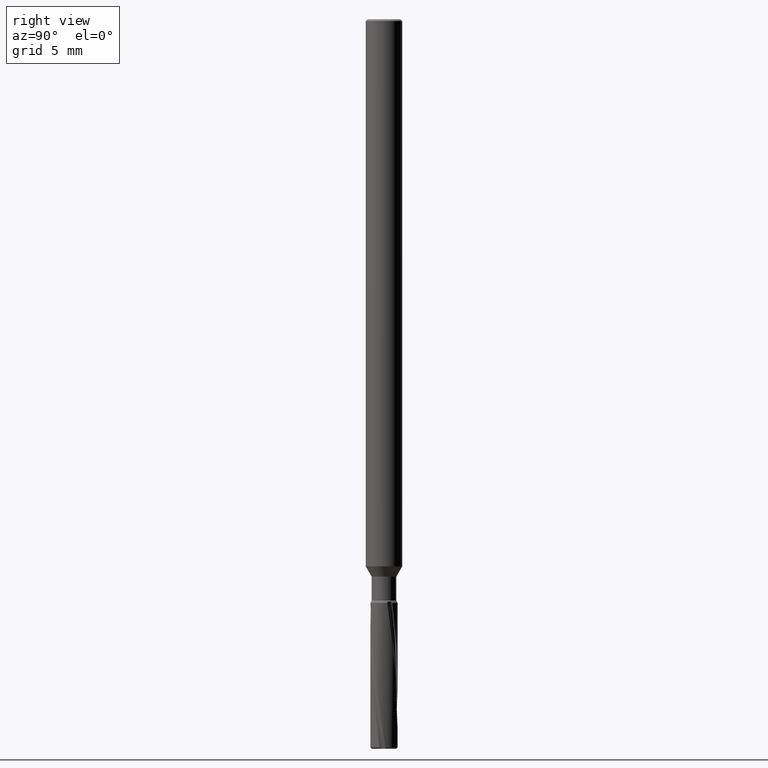
[diagram: clean part render]
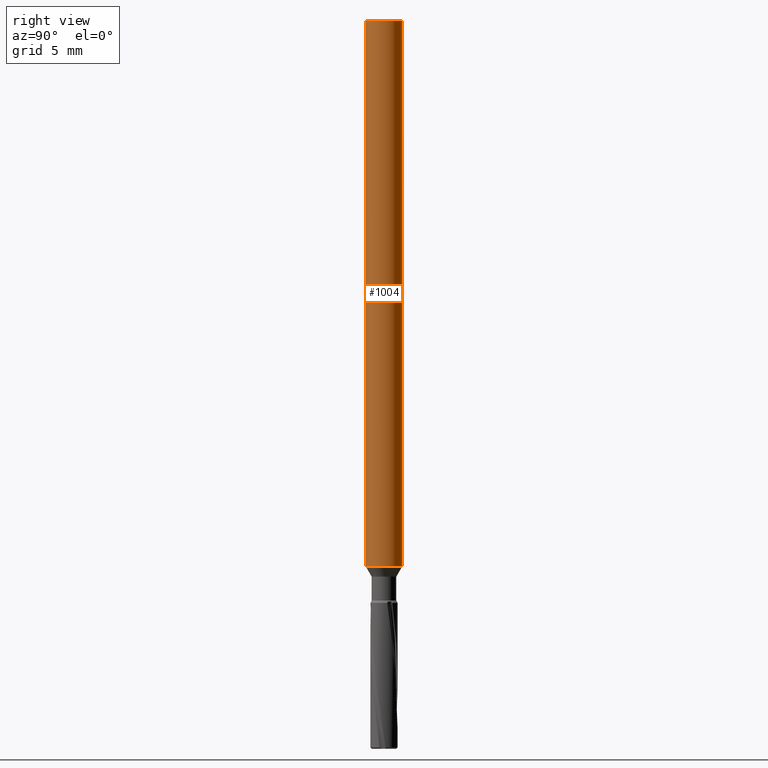
[diagram: same view with one face highlighted and labeled with its STEP entity id]
A machine part, right view. The second image highlights one B-rep face of the part: STEP entity #1004.
In plain terms, the highlighted cylindrical surface (edge-blend (fillet) strip) has radius 1 mm, axis along (-0, -0, 1).
Its self-contained STEP definition (entity closure, byte-faithful):
#538=VERTEX_POINT('',#1348);
#672=EDGE_CURVE('',#778,#948,#1491,.T.);
#712=EDGE_CURVE('',#964,#538,#1536,.T.);
#772=EDGE_CURVE('',#538,#948,#1601,.T.);
#778=VERTEX_POINT('',#1607);
#948=VERTEX_POINT('',#1792);
#964=VERTEX_POINT('',#1808);
#982=EDGE_CURVE('',#778,#964,#1830,.T.);
#1004=ADVANCED_FACE('',(#1855),#1856,.T.);
#1348=CARTESIAN_POINT('',(1.22460635382238E-016,-1.0,-30.0));
#1491=CIRCLE('',#3237,1.0);
#1536=CIRCLE('',#3558,1.0);
#1601=LINE('',#3689,#3690);
#1607=CARTESIAN_POINT('',(0.0,1.0,-0.100000000000001));
#1792=CARTESIAN_POINT('',(1.22460635382238E-016,-1.0,-0.100000000000001));
#1808=CARTESIAN_POINT('',(0.0,1.0,-30.0));
#1830=LINE('',#5029,#5030);
#1855=FACE_OUTER_BOUND('',#5281,.T.);
#1856=CYLINDRICAL_SURFACE('',#5282,1.0);
#3237=AXIS2_PLACEMENT_3D('',#6644,#6645,#6646);
#3558=AXIS2_PLACEMENT_3D('',#6695,#6696,#6697);
#3689=CARTESIAN_POINT('',(1.22460635382238E-016,-1.0,-15.05));
#3690=VECTOR('',#6775,1.0);
#5029=CARTESIAN_POINT('',(-1.22460635382238E-016,1.0,-15.05));
#5030=VECTOR('',#7005,1.0);
#5281=EDGE_LOOP('',(#7025,#7026,#7027,#7028));
#5282=AXIS2_PLACEMENT_3D('',#7029,#7030,#7031);
#6644=CARTESIAN_POINT('',(0.0,0.0,-0.100000000000001));
#6645=DIRECTION('',(0.0,0.0,-1.0));
#6646=DIRECTION('',(0.0,1.0,0.0));
#6695=CARTESIAN_POINT('',(0.0,0.0,-30.0));
#6696=DIRECTION('',(0.0,0.0,-1.0));
#6697=DIRECTION('',(0.0,1.0,0.0));
#6775=DIRECTION('',(-0.0,-0.0,1.0));
#7005=DIRECTION('',(0.0,0.0,-1.0));
#7025=ORIENTED_EDGE('',*,*,#982,.F.);
#7026=ORIENTED_EDGE('',*,*,#672,.T.);
#7027=ORIENTED_EDGE('',*,*,#772,.F.);
#7028=ORIENTED_EDGE('',*,*,#712,.F.);
#7029=CARTESIAN_POINT('',(0.0,0.0,-15.05));
#7030=DIRECTION('',(-0.0,-0.0,1.0));
#7031=DIRECTION('',(0.0,1.0,0.0));